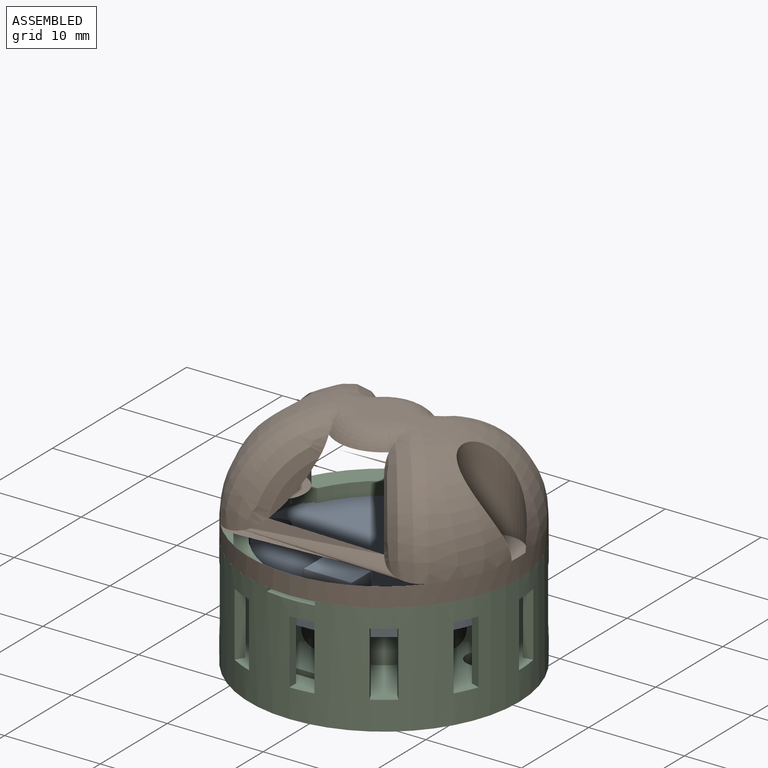
[diagram: assembled view]
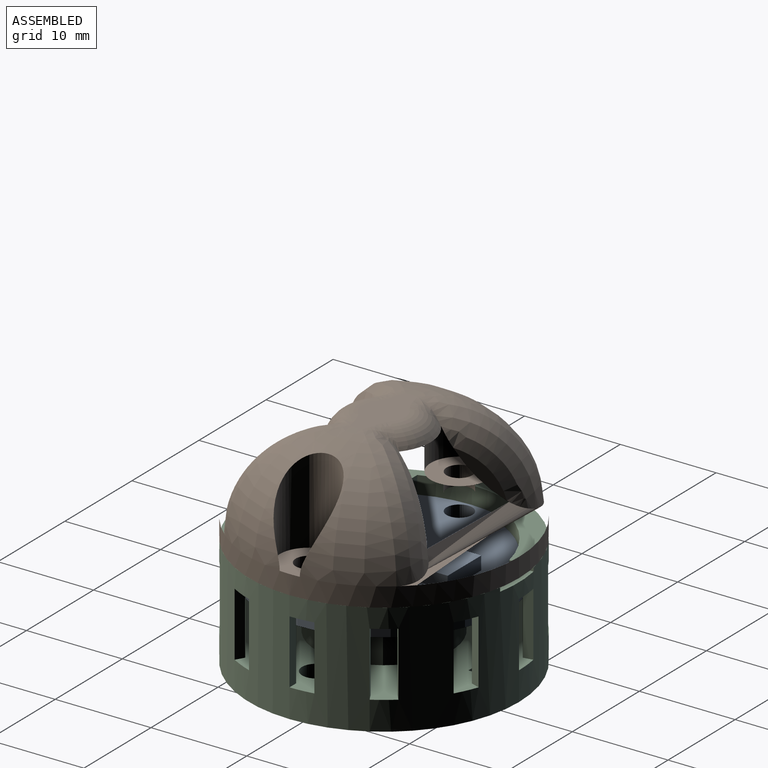
[diagram: assembled view, second angle]
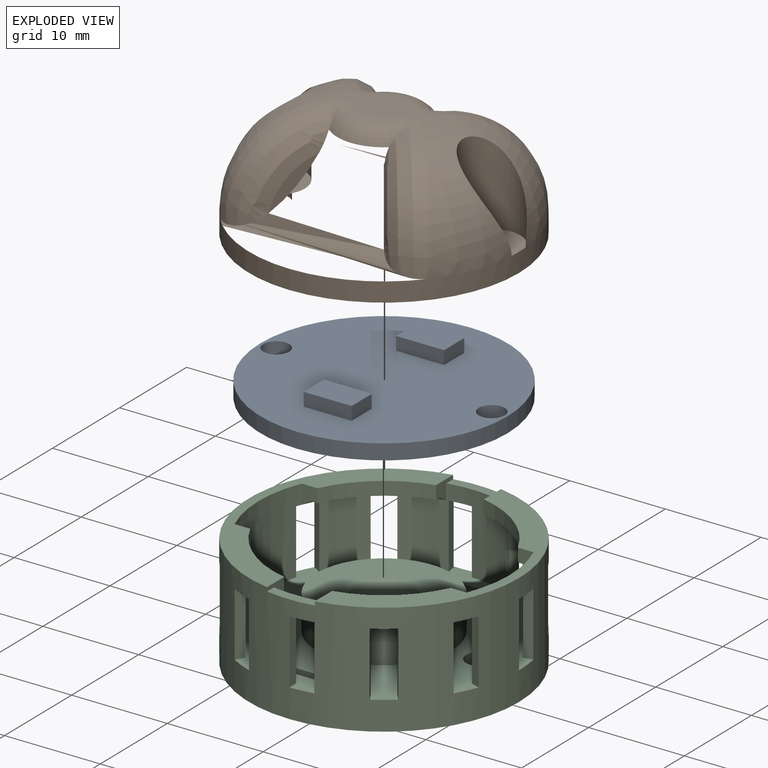
[diagram: exploded view]
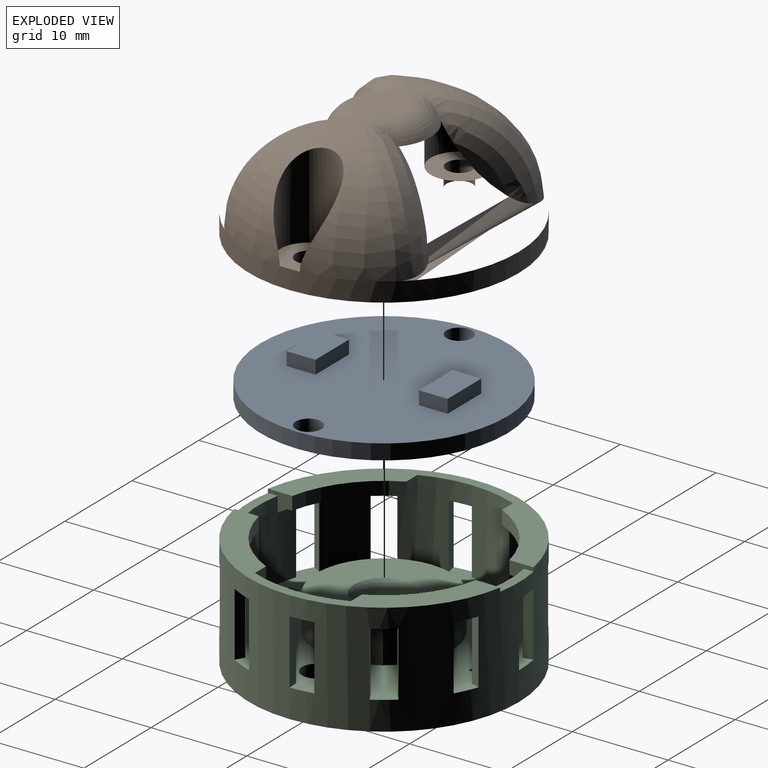
[diagram: exploded view, second angle]
ASSEMBLY  parts=3 mates=2
PART A: 23 faces, bbox 25.8x25.8x6 mm
  f0: plane 25.8x25.8mm, normal (0,0,-1), area 481.3mm2, adj f1,f2,f3,f13,f14,f15,f16,f18
  f1: cylinder r=1.35mm len=2.7mm, axis (0,0,-1), area 13.6mm2, adj f0,f4
  f2: cylinder r=1.35mm len=2.7mm, axis (0,0,-1), area 13.6mm2, adj f0,f4
  f3: cylinder r=12.9mm len=25.8mm, axis (0,0,-1), area 129.7mm2, adj f0,f4
  f4: plane 25.8x25.8mm, normal (0,0,1), area 411.3mm2, adj f1,f2,f3,f5,f6,f7,f8
  f5: plane 10x0.4mm, normal (0,-1,0), area 4mm2, adj f4,f6,f8,f9
  f6: plane 10x0.4mm, normal (1,0,0), area 4mm2, adj f4,f5,f7,f9
  f7: plane 10x0.4mm, normal (0,1,0), area 4mm2, adj f4,f6,f8,f9
  f8: plane 10x0.4mm, normal (-1,0,0), area 4mm2, adj f4,f5,f7,f9
  f9: plane 10x10mm, normal (0,0,1), area 63.7mm2, adj f5,f6,f7,f8,f11
  f10: plane 2x2mm, normal (0,0,1), area 3.1mm2, adj f12
  f11: cylinder r=3.4mm len=6.8mm, axis (0,0,-1), area 3.2mm2, adj f9,f12
  f12: torus R=1mm, axis (0,0,1), area 59.9mm2, adj f10,f11
  f13: plane 3x1.4mm, normal (1,0,0), area 4.2mm2, adj f0,f14,f16,f17
  f14: plane 5x1.4mm, normal (0,1,0), area 7mm2, adj f0,f13,f15,f17
  f15: plane 3x1.4mm, normal (-1,0,0), area 4.2mm2, adj f0,f14,f16,f17
  f16: plane 5x1.4mm, normal (0,-1,0), area 7mm2, adj f0,f13,f15,f17
  f17: plane 5x3mm, normal (0,0,-1), area 15mm2, adj f13,f14,f15,f16
  f18: plane 3x1.4mm, normal (1,0,0), area 4.2mm2, adj f0,f19,f21,f22
  f19: plane 5x1.4mm, normal (0,1,0), area 7mm2, adj f0,f18,f20,f22
  f20: plane 3x1.4mm, normal (-1,0,0), area 4.2mm2, adj f0,f19,f21,f22
  f21: plane 5x1.4mm, normal (0,-1,0), area 7mm2, adj f0,f18,f20,f22
  f22: plane 5x3mm, normal (0,0,-1), area 15mm2, adj f18,f19,f20,f21
PART B: 27 faces, bbox 70.2x70.2x54.2 mm
  f0: torus R=4.1mm, axis (0,0,1), area 147.9mm2, adj f2,f4,f12,f13,f24
  f1: torus R=4.1mm, axis (0,0,1), area 147.9mm2, adj f3,f4,f11,f14,f24
  f2: cylinder r=3mm len=9.1mm, axis (0,0,-1), area 107mm2, adj f0,f21
  f3: cylinder r=3mm len=9.1mm, axis (0,0,-1), area 107mm2, adj f1,f22
  f4: plane 8.2x4.43mm, normal (0,0,1), area 23mm2, adj f0,f1,f15,f16,f17,f18,f19,f20
  f5: revolved ~28.18x28.13mm, area 338.6mm2, adj f6,f7,f13,f14,f16,f24
  f6: plane 47.18x45.96mm, normal (0.82,-0.57,0), area 5.7mm2, adj f5,f13
  f7: plane 30.41x29.19mm, normal (-0.82,-0.57,0), area 5.7mm2, adj f5,f14
  f8: revolved ~28.18x28.13mm, area 338.6mm2, adj f9,f10,f11,f12,f19,f24
  f9: plane 47.18x45.96mm, normal (-0.82,0.57,0), area 5.7mm2, adj f8,f11
  f10: plane 30.41x29.19mm, normal (0.82,0.57,0), area 5.7mm2, adj f8,f12
  f11: bspline ~12.21x11.78mm, area 66.8mm2, adj f1,f8,f9,f20
  f12: bspline ~11.9x11.78mm, area 66.8mm2, adj f0,f8,f10,f18
  f13: bspline ~11.9x11.78mm, area 66.8mm2, adj f0,f5,f6,f17
  f14: bspline ~12.21x11.78mm, area 66.8mm2, adj f1,f5,f7,f15
  f15: bspline ~3.29x2.95mm, area 2.8mm2, adj f4,f14,f16
  f16: torus R=2.21mm, axis (0,0,1), area 17mm2, adj f4,f5,f15,f17
  f17: bspline ~3.18x2.64mm, area 2.8mm2, adj f4,f13,f16
  f18: bspline ~3.29x2.95mm, area 2.8mm2, adj f4,f12,f19
  f19: torus R=2.21mm, axis (0,0,1), area 17mm2, adj f4,f8,f18,f20
  f20: bspline ~3.34x3.09mm, area 2.8mm2, adj f4,f11,f19
  f21: plane 6x5.85mm, normal (0,0,1), area 22.3mm2, adj f2,f24,f25
  f22: plane 6x5.85mm, normal (0,0,1), area 22.3mm2, adj f3,f23,f24
  f23: cylinder r=1.35mm len=2.7mm, axis (0,0,1), area 17mm2, adj f22,f26
  f24: cylinder r=14.1mm len=28.2mm, axis (0,0,1), area 177.2mm2, adj f0,f1,f5,f8,f21,f22,f26
  f25: cylinder r=1.35mm len=2.7mm, axis (0,0,1), area 17mm2, adj f21,f26
  f26: plane 28.2x28.2mm, normal (0,0,-1), area 613.1mm2, adj f23,f24,f25
PART C: 84 faces, bbox 28.2x28.2x11.7 mm
  f0: cylinder r=11.6mm len=7.97mm, axis (0,0,-1), area 14.7mm2, adj f4,f20,f69,f74
  f1: cylinder r=11.6mm len=7.97mm, axis (0,0,-1), area 14.7mm2, adj f3,f11,f22,f71
  f2: revolved ~10.18x7.86mm, area 13.7mm2, adj f3,f15,f22,f36,f41,f62,f71
  f3: plane 8.57x6.88mm, normal (0,0,-1), area 6mm2, adj f1,f2,f22,f71
  f4: plane 8.57x6.88mm, normal (0,0,-1), area 6mm2, adj f0,f5,f20,f74
  f5: revolved ~10.18x7.86mm, area 13.7mm2, adj f4,f19,f20,f52,f57,f64,f74
  f6: plane 28.2x28.2mm, normal (0,0,1), area 386.4mm2, adj f8,f24,f27,f28,f29,f30,f31,f32
  f7: plane 28.2x28.2mm, normal (0,0,-1), area 600.4mm2, adj f8,f27,f28,f76,f77,f78,f79,f80
  f8: cylinder r=14.1mm len=28.2mm, axis (0,0,1), area 834.7mm2, adj f6,f7,f11,f12,f13,f14,f15,f16
  f9: cylinder r=11.6mm len=7.97mm, axis (0,0,-1), area 14.7mm2, adj f11,f21,f67,f73
  f10: cylinder r=11.6mm len=7.97mm, axis (0,0,-1), area 14.7mm2, adj f23,f66,f69,f70
  f11: plane 27.75x11.6mm, normal (0,0,1), area 72.9mm2, adj f1,f8,f9,f21,f22,f44,f71,f73
  f12: plane 2.51x2.18mm, normal (0,0,-1), area 2.4mm2, adj f8,f29,f34,f65
  f13: plane 2.57x1.9mm, normal (0,0,-1), area 2.4mm2, adj f8,f32,f37,f65
  f14: plane 2.45x1.2mm, normal (0,0,-1), area 2.4mm2, adj f8,f35,f36,f39
  f15: plane 2.51x2.18mm, normal (0,0,-1), area 2.4mm2, adj f2,f8,f38,f42
  f16: plane 2.51x2.18mm, normal (0,0,-1), area 2.4mm2, adj f8,f46,f50,f68
  f17: plane 2.57x1.9mm, normal (0,0,-1), area 2.4mm2, adj f8,f48,f53,f68
  f18: plane 2.45x1.2mm, normal (0,0,-1), area 2.4mm2, adj f8,f51,f52,f55
  f19: plane 2.51x2.18mm, normal (0,0,-1), area 2.4mm2, adj f5,f8,f54,f58
  f20: plane 2x1.64mm, normal (0,1,0), area 2.6mm2, adj f0,f4,f5,f30,f69
  f21: plane 2x1.64mm, normal (0,1,0), area 2.6mm2, adj f9,f11,f44,f67,f68
  f22: plane 2x1.64mm, normal (0,-1,0), area 2.6mm2, adj f1,f2,f3,f11,f44
  f23: plane 2x1.64mm, normal (0,-1,0), area 2.6mm2, adj f10,f30,f65,f66,f69
  f24: cylinder r=7.07mm len=14.14mm, axis (0,0,-1), area 155.5mm2, adj f6,f25
  f25: plane 14.14x14.14mm, normal (0,0,1), area 126.9mm2, adj f24,f26
  f26: revolved ~6.2x6.2mm, area 34.6mm2, adj f25
  f27: cylinder r=1.5mm len=3mm, axis (0,0,1), area 28.3mm2, adj f6,f7
  f28: cylinder r=1.5mm len=3mm, axis (0,0,1), area 28.3mm2, adj f6,f7
  f29: plane 6.7x0.87mm, normal (-0.5,0.87,0), area 6.7mm2, adj f6,f8,f12,f30
  f30: cylinder r=13.1mm len=11.55mm, axis (0,0,-1), area 81.8mm2, adj f6,f20,f23,f29,f31,f59,f60,f61
  f31: plane 6.7x0.99mm, normal (0.17,-0.98,0), area 6.7mm2, adj f6,f8,f30,f61
  f32: plane 6.7x0.87mm, normal (-0.87,0.5,0), area 6.7mm2, adj f6,f8,f13,f33
  f33: cylinder r=13.1mm len=6.7mm, axis (0,0,-1), area 30.6mm2, adj f6,f32,f34,f65
  f34: plane 6.7x0.77mm, normal (0.64,-0.77,0), area 6.7mm2, adj f6,f8,f12,f33
  f35: plane 6.7x1mm, normal (-1,0,0), area 6.7mm2, adj f6,f8,f14,f36
  f36: cylinder r=13.1mm len=11.03mm, axis (0,0,-1), area 69.3mm2, adj f2,f6,f14,f35,f37,f38,f39,f65
  f37: plane 6.7x0.94mm, normal (0.94,-0.34,0), area 6.7mm2, adj f6,f8,f13,f36
  f38: plane 6.7x0.87mm, normal (-0.87,-0.5,0), area 6.7mm2, adj f6,f8,f15,f36
  f39: plane 6.7x0.99mm, normal (0.98,0.17,0), area 6.7mm2, adj f6,f8,f14,f36
  f40: plane 6.7x0.87mm, normal (-0.5,-0.87,0), area 6.7mm2, adj f6,f8,f41,f62
  f41: cylinder r=13.1mm len=6.7mm, axis (0,0,-1), area 30.6mm2, adj f2,f6,f40,f42
  f42: plane 6.7x0.77mm, normal (0.77,0.64,0), area 6.7mm2, adj f6,f8,f15,f41
  f43: plane 6.7x1mm, normal (0,-1,0), area 6.7mm2, adj f6,f8,f44,f63
  f44: cylinder r=13.1mm len=11.55mm, axis (0,0,-1), area 81.8mm2, adj f6,f11,f21,f22,f43,f45,f46,f47
  f45: plane 6.7x0.94mm, normal (0.34,0.94,0), area 6.7mm2, adj f6,f8,f44,f62
  f46: plane 6.7x0.87mm, normal (0.5,-0.87,0), area 6.7mm2, adj f6,f8,f16,f44
  f47: plane 6.7x0.99mm, normal (-0.17,0.98,0), area 6.7mm2, adj f6,f8,f44,f63
  f48: plane 6.7x0.87mm, normal (0.87,-0.5,0), area 6.7mm2, adj f6,f8,f17,f49
  f49: cylinder r=13.1mm len=6.7mm, axis (0,0,-1), area 30.6mm2, adj f6,f48,f50,f68
  f50: plane 6.7x0.77mm, normal (-0.64,0.77,0), area 6.7mm2, adj f6,f8,f16,f49
  f51: plane 6.7x1mm, normal (1,0,0), area 6.7mm2, adj f6,f8,f18,f52
  f52: cylinder r=13.1mm len=11.03mm, axis (0,0,-1), area 69.3mm2, adj f5,f6,f18,f51,f53,f54,f55,f68
  f53: plane 6.7x0.94mm, normal (-0.94,0.34,0), area 6.7mm2, adj f6,f8,f17,f52
  f54: plane 6.7x0.87mm, normal (0.87,0.5,0), area 6.7mm2, adj f6,f8,f19,f52
  f55: plane 6.7x0.99mm, normal (-0.98,-0.17,0), area 6.7mm2, adj f6,f8,f18,f52
  f56: plane 6.7x0.87mm, normal (0.5,0.87,0), area 6.7mm2, adj f6,f8,f57,f64
  f57: cylinder r=13.1mm len=6.7mm, axis (0,0,-1), area 30.6mm2, adj f5,f6,f56,f58
  f58: plane 6.7x0.77mm, normal (-0.77,-0.64,0), area 6.7mm2, adj f6,f8,f19,f57
  f59: plane 6.7x1mm, normal (0,1,0), area 6.7mm2, adj f6,f8,f30,f61
  f60: plane 6.7x0.94mm, normal (-0.34,-0.94,0), area 6.7mm2, adj f6,f8,f30,f64
  f61: plane 2.45x1.2mm, normal (0,0,-1), area 2.4mm2, adj f8,f30,f31,f59
  f62: plane 2.57x1.9mm, normal (0,0,-1), area 2.4mm2, adj f2,f8,f40,f44,f45
  f63: plane 2.45x1.2mm, normal (0,0,-1), area 2.4mm2, adj f8,f43,f44,f47
  f64: plane 2.57x1.9mm, normal (0,0,-1), area 2.4mm2, adj f5,f8,f30,f56,f60
  f65: revolved ~9.83x8.64mm, area 13.7mm2, adj f12,f13,f23,f30,f33,f36,f66,f70
  f66: plane 8.57x6.88mm, normal (0,0,-1), area 6mm2, adj f10,f23,f65,f70
  f67: plane 8.57x6.88mm, normal (0,0,-1), area 6mm2, adj f9,f21,f68,f73
  f68: revolved ~9.83x8.64mm, area 13.7mm2, adj f16,f17,f21,f44,f49,f52,f67,f73
  f69: plane 27.75x11.6mm, normal (0,0,1), area 72.9mm2, adj f0,f8,f10,f20,f23,f30,f70,f74
  f70: plane 2.56x2.01mm, normal (-1,0,0), area 2.8mm2, adj f8,f10,f36,f65,f66,f69,f72
  f71: plane 2.55x2mm, normal (1,0,0), area 2.8mm2, adj f1,f2,f3,f8,f11,f36,f72
  f72: plane 5x1.24mm, normal (0,0,1), area 5mm2, adj f8,f36,f70,f71
  f73: plane 2.56x2.01mm, normal (1,0,0), area 2.8mm2, adj f8,f9,f11,f52,f67,f68,f75
  f74: plane 2.55x2mm, normal (-1,0,0), area 2.8mm2, adj f0,f4,f5,f8,f52,f69,f75
  f75: plane 5x1.24mm, normal (0,0,1), area 5mm2, adj f8,f52,f73,f74
  f76: plane 3x1mm, normal (-1,0,0), area 3mm2, adj f6,f7,f77,f79
  f77: plane 5x3mm, normal (0,-1,0), area 15mm2, adj f6,f7,f76,f78
  f78: plane 3x1mm, normal (1,0,0), area 3mm2, adj f6,f7,f77,f79
  f79: plane 5x3mm, normal (0,1,0), area 15mm2, adj f6,f7,f76,f78
  f80: plane 3x1mm, normal (-1,0,0), area 3mm2, adj f6,f7,f81,f83
  f81: plane 5x3mm, normal (0,-1,0), area 15mm2, adj f6,f7,f80,f82
  f82: plane 3x1mm, normal (1,0,0), area 3mm2, adj f6,f7,f81,f83
  f83: plane 5x3mm, normal (0,1,0), area 15mm2, adj f6,f7,f80,f82
PLACE A rot(axis=(0,1,0),180deg) t=(8.92,-0.42,-4.25)mm
PLACE B t=(8.92,-0.42,-0.5)mm
PLACE C t=(8.92,-0.42,-11.2)mm fixed
MATE fastened A.f11 <-> C.f8  axis (0,0,-1) through (8.92,-0.42,-8.8)mm
MATE fastened B.f0 <-> C.f8  axis (0,0,-1) through (8.92,-0.42,-2.5)mm
